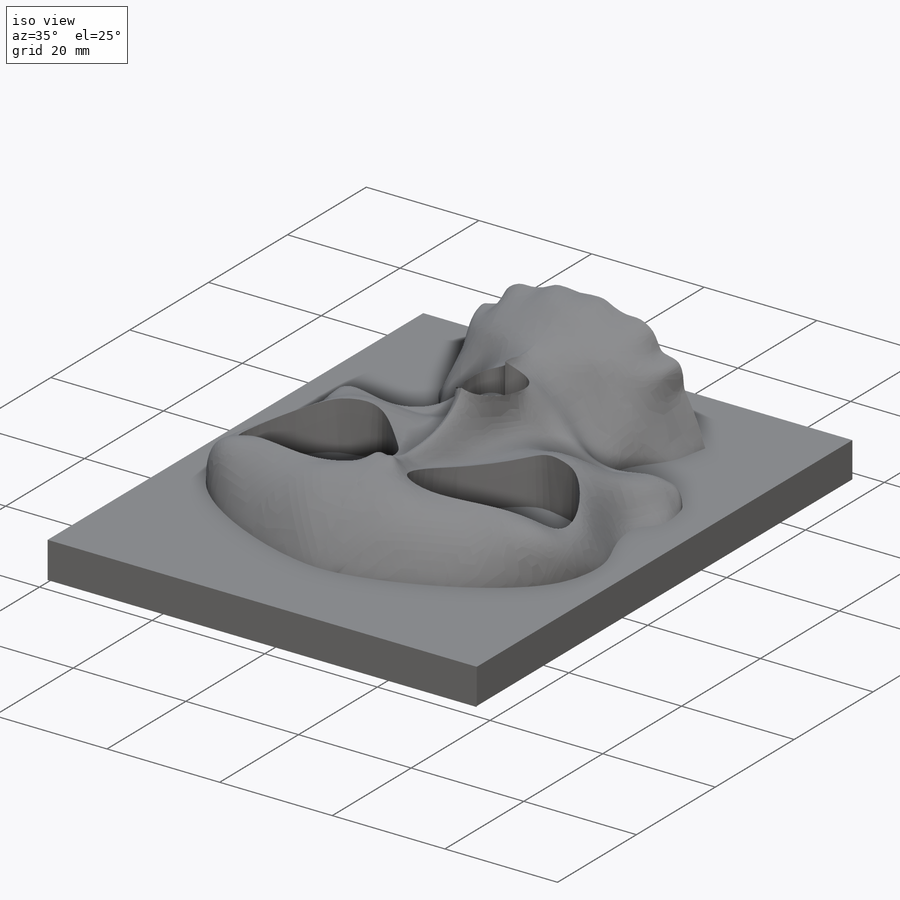
[diagram: iso view]
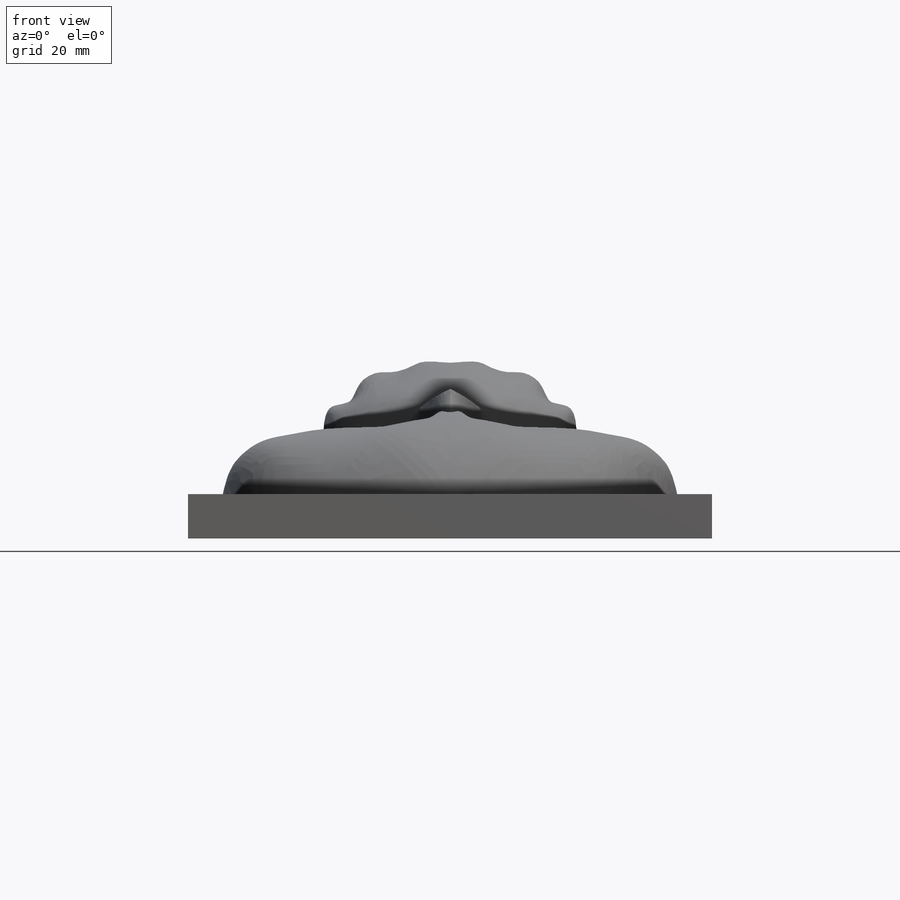
[diagram: front view]
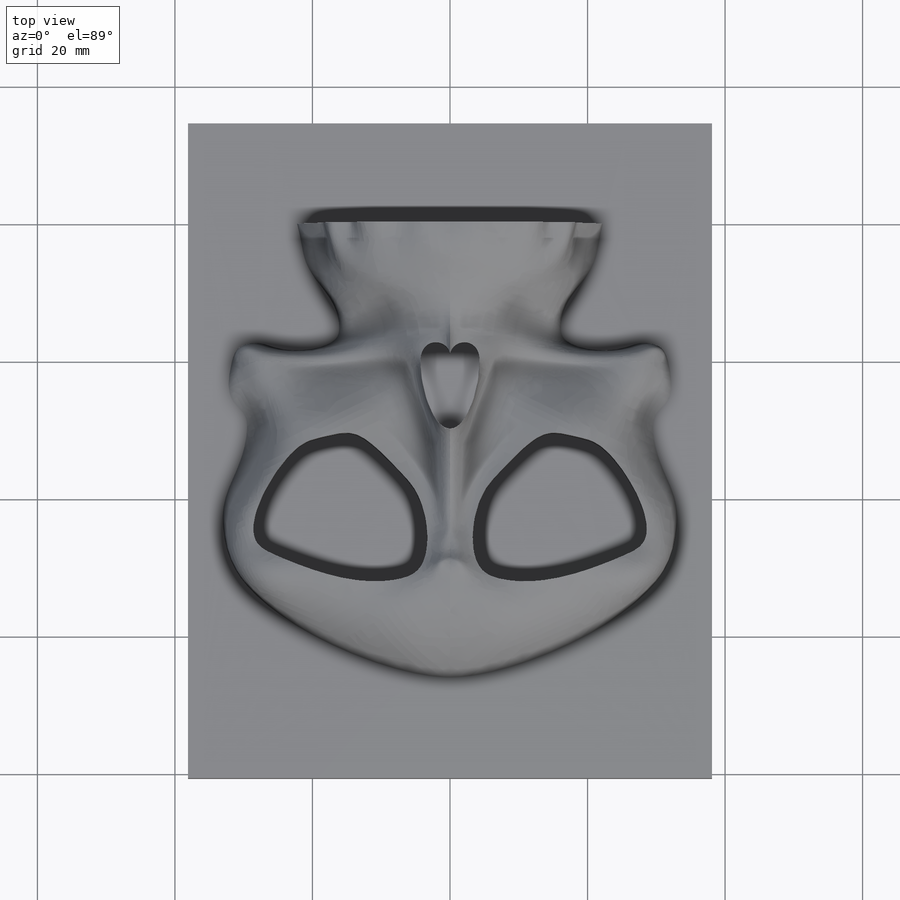
[diagram: top view]
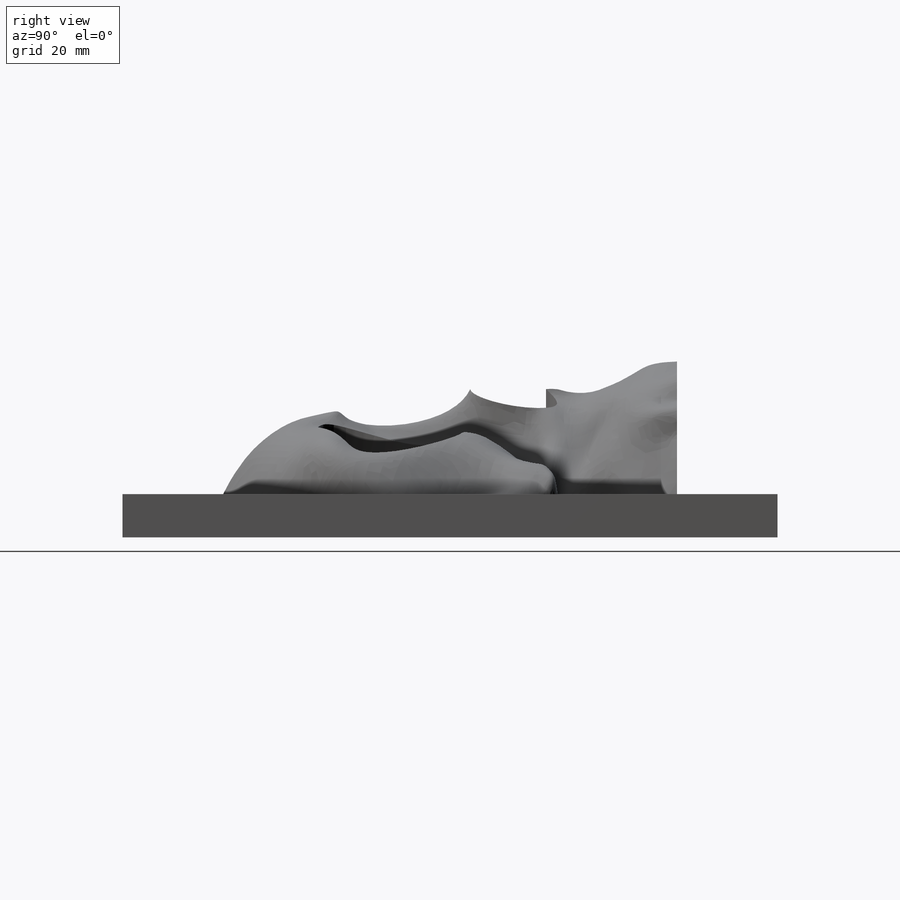
[diagram: right view]
SOLIDWORKS PART (.sldprt)
format: sldprt  version: not decoded by parser v0  size: 1,390,592 bytes
history: native  units: mm
features: sketch x33, delete_body x26, plane x17, mirror x9, surface_op x8, material x1 (+11 scaffold rows collapsed)
feature tree (105):
  scaffold x11  (default folders/planes/origin — collapsed)
  material  "Material <not specified>"
  sketch  "Sketch1"  dims[D3=2.54mm D1=19.05mm D2=22.225mm]
  sketch  "Sketch2"
  plane  "Plane1"  Offset=9.525mm
  sketch  "Sketch3"  dims[D1=15.875mm D2=18.415mm]
  sketch  "Sketch4"
  sketch  "Sketch5"
  sketch  "3DSketch1"
  sketch  "Sketch6"  dims[D1=9.525mm]
  sketch  "3DSketch2"  dims[D1=~11.125507mm D2=9.525mm]
  plane  "Plane2"
  sketch  "Sketch7"
  sketch  "Sketch8"
  sketch  "3DSketch4"
  sketch  "3DSketch5"
  sketch  "3DSketch6"
  sketch  "Sketch9"
  sketch  "3DSketch7"
  sketch  "Sketch10"
  plane  "Plane3"
  sketch  "Sketch13"
  plane  "Plane4"  Offset=45.72mm
  sketch  "Sketch14"
  plane  "Plane5"
  sketch  "Sketch15"
  plane  "Plane7"
  sketch  "Sketch17"
  plane  "Plane8"
  sketch  "Sketch18"
  plane  "Plane9"
  plane  "Plane10"  Offset=6.35mm
  sketch  "Sketch20"
  surface_op  "Surface-Extrude1"
  plane  "Plane11"  Offset=12.7mm
  sketch  "Sketch21"
  mirror  "Mirror1"
  mirror  "Surface-Knit2"
  sketch  "Sketch26"  dims[D1=302.768mm]
  surface_op  "Surface-Plane2"
  surface_op  "Surface-Plane3"
  sketch  "Sketch27"  dims[D1=76.2mm D2=95.25mm D3=14.605mm D4=~5.70046mm]
  surface_op  "Surface-Plane4"
  sketch  "Sketch28"
  plane  "Plane12"
  sketch  "Sketch29"  dims[D1=6.35mm]
  surface_op  "Surface-Plane7"
  plane  "Plane13"
  plane  "Plane14"
  plane  "Plane15"
  sketch  "Sketch32"
  surface_op  "Surface-Plane8"
  plane  "Plane16"
  sketch  "Sketch33"
  surface_op  "Surface-Plane9"
  plane  "Plane17"
  sketch  "Sketch34"
  surface_op  "Surface-Plane10"
  plane  "Plane18"
  sketch  "Sketch35"
  mirror  "Surface-Knit3"
  mirror  "Surface-Knit5"
  mirror  "Surface-Knit8"
  sketch  "Sketch28<4>"
  mirror  "Surface-Knit10"
  mirror  "Surface-Knit11"
  mirror  "Surface-Knit12"
  delete_body  "Body-Delete1"
  mirror  "Surface-Knit13"
  delete_body  "CW Face-1"
  delete_body  "CW Face-2"
  delete_body  "CW Face-3"
  delete_body  "CW Face-4"
  delete_body  "CW Face-5"
  delete_body  "CW Face-6"
  delete_body  "CW Face-7"
  delete_body  "CW Face-8"
  delete_body  "CW Face-9"
  delete_body  "CW Face-10"
  delete_body  "CW Face-11"
  delete_body  "CW Face-12"
  delete_body  "CW Face-13"
  delete_body  "CW Face-14"
  delete_body  "CW Face-15"
  delete_body  "CW Face-16"
  delete_body  "CW Face-17"
  delete_body  "CW Face-18"
  delete_body  "CW Face-19"
  delete_body  "CW Face-20"
  delete_body  "CW Face-21"
  delete_body  "CW Face-22"
  delete_body  "CW Face-23"
  delete_body  "CW Face-24"
  delete_body  "CW Vertex-25"
  sketch  "Sketch36"  dims[D1=29.845mm]
decode coverage: 8 of 76 modeling features carry decoded parameters
note: ~ marks probable driven/reference dimensions
note: suppression state not decoded; provenance and decode notes live in map.json
